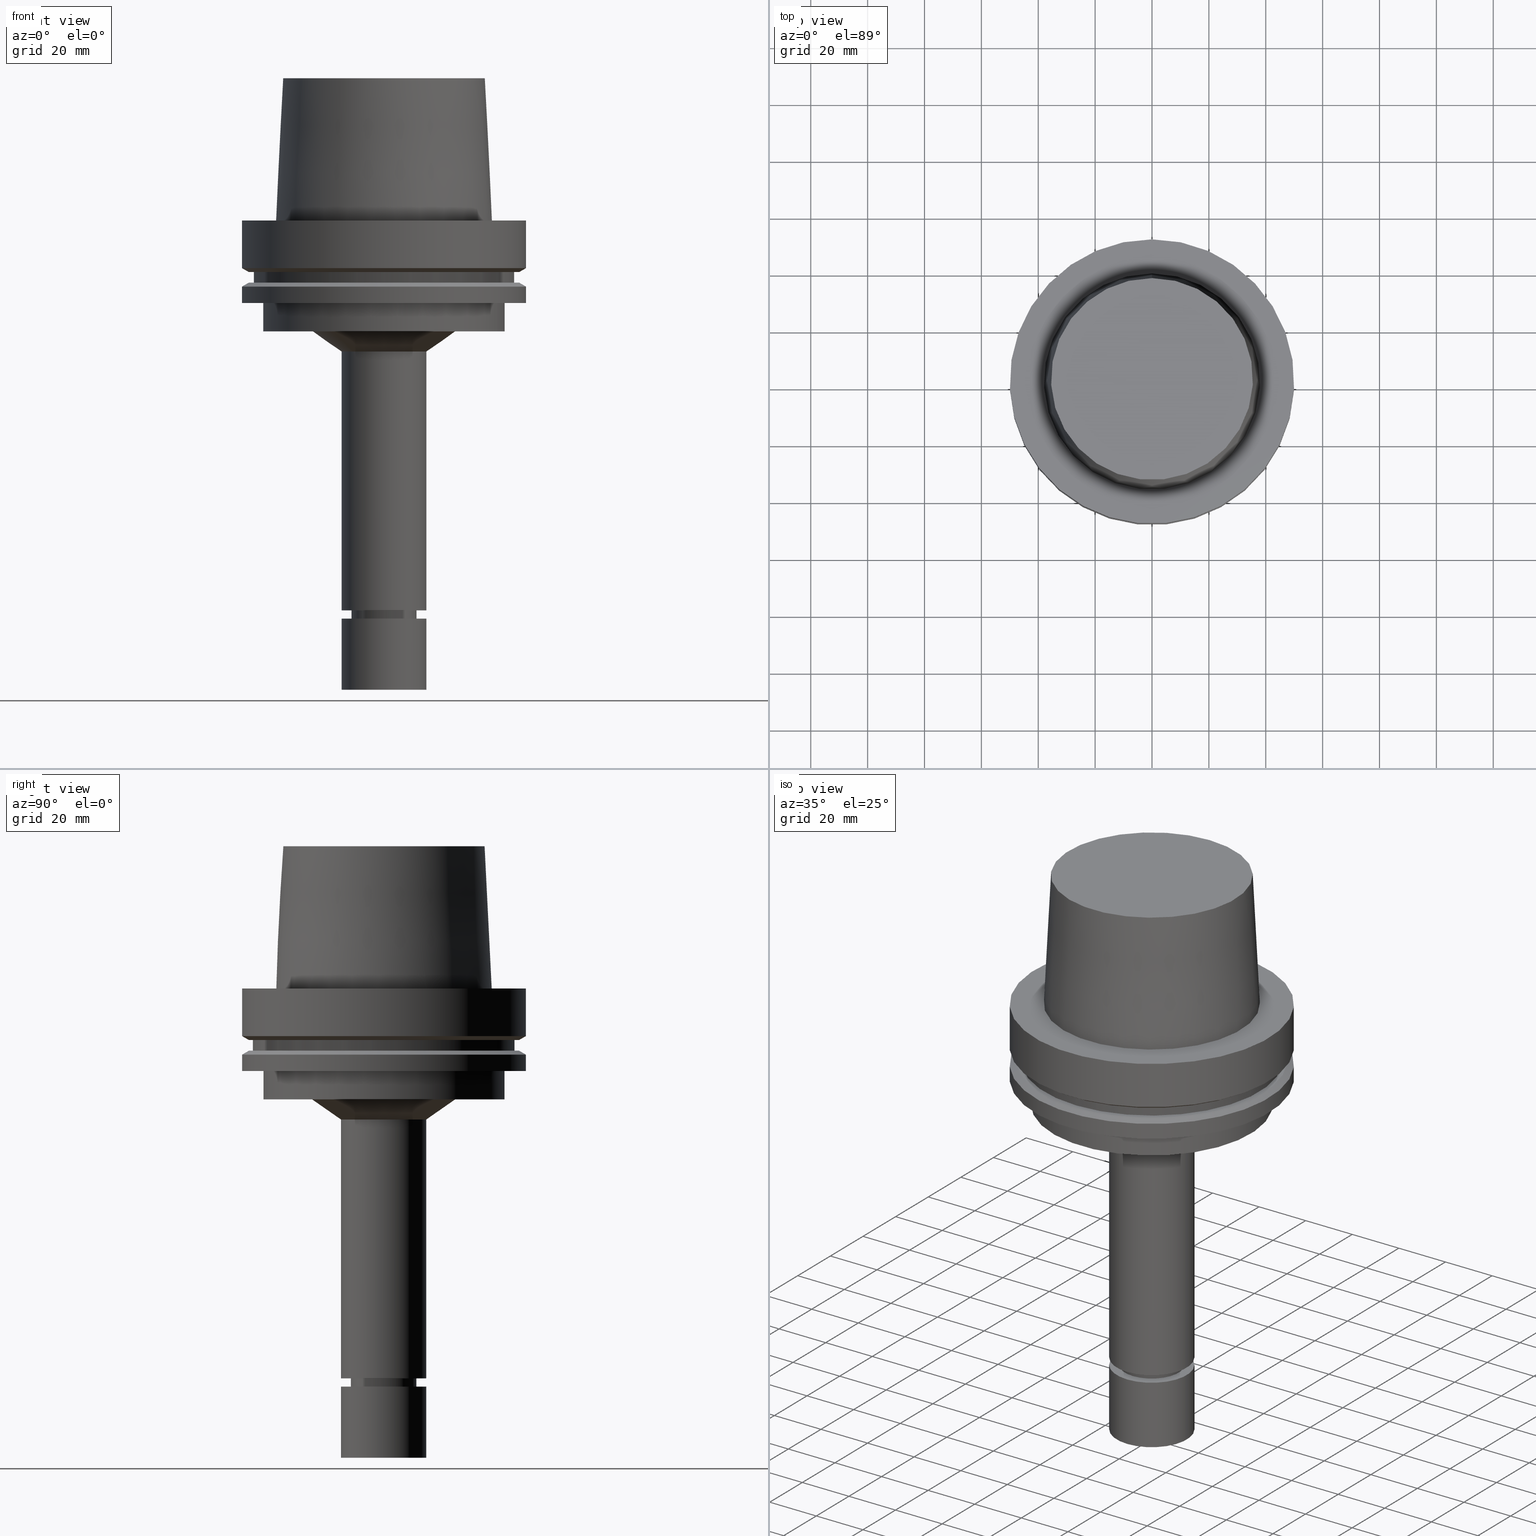
[diagram: canonical four-view strip — front | top / right | iso, engineering-drawing reading convention]
A machine part, canonical four-view strip (front | top / right | iso — engineering-drawing reading convention). The complete STEP part file that produces these views, byte-faithful:
ISO-10303-21;
HEADER;
FILE_DESCRIPTION((''),'1');
FILE_NAME('U:/Translate/02_3D_Field-HP\X2\FF71FF6FFF8CFF9F5916\X0\2013/02_Step_Field-HP\X2\FF71FF6FFF8CFF9F5916\X0\2013/HSK-A100-MEGAER16-165NL.stp','2016-06-22T01:16:30',(''),(''),'Spatial Interop R21 SP3','Kubotek KeyCreator 2011 V10.0.2 (22737)',' ');
FILE_SCHEMA(('automotive_design'));
ENDSEC;
DATA;
#1=MECHANICAL_DESIGN_GEOMETRIC_PRESENTATION_REPRESENTATION(' ',(#14,#15,#16,#17,#18,#19,#20,#21,#22,#23,#24,#25,#26,#27,#28,#29,#30,#31,#32,#33,#34,#35,#36,#37,#38,#39,#40,#41,#42,#43,#44,#45,#46,#47,#48,#49,#50,#51,#52,#53,#54,#55,#56,#57,#58,#59,#60,#61),#10);
#2=PRODUCT_DEFINITION_CONTEXT('',#62,'design');
#3=APPLICATION_PROTOCOL_DEFINITION('INTERNATIONAL STANDARD','automotive_design',1994,#62);
#4=PRODUCT_CATEGORY_RELATIONSHIP('NONE','NONE',#63,#64);
#5=SHAPE_DEFINITION_REPRESENTATION(#65,#66);
#6=PRODUCT_DEFINITION_CONTEXT('',#67,'design');
#7=APPLICATION_PROTOCOL_DEFINITION('INTERNATIONAL STANDARD','automotive_design',1994,#67);
#8=PRODUCT_CATEGORY_RELATIONSHIP('NONE','NONE',#68,#69);
#9=SHAPE_DEFINITION_REPRESENTATION(#70,#71);
#10= (GEOMETRIC_REPRESENTATION_CONTEXT(3)GLOBAL_UNCERTAINTY_ASSIGNED_CONTEXT((#74))GLOBAL_UNIT_ASSIGNED_CONTEXT((#76,#77,#78))REPRESENTATION_CONTEXT('NONE','WORKSPACE'));
#14=STYLED_ITEM('',(#80),#81);
#15=STYLED_ITEM('',(#82,#83),#84);
#16=STYLED_ITEM('',(#85,#86),#87);
#17=STYLED_ITEM('',(#88,#89),#90);
#18=STYLED_ITEM('',(#91),#92);
#19=STYLED_ITEM('',(#93),#94);
#20=STYLED_ITEM('',(#95,#96),#97);
#21=STYLED_ITEM('',(#98),#99);
#22=STYLED_ITEM('',(#100),#101);
#23=STYLED_ITEM('',(#102,#103),#104);
#24=STYLED_ITEM('',(#105),#106);
#25=STYLED_ITEM('',(#107),#108);
#26=STYLED_ITEM('',(#109,#110),#111);
#27=STYLED_ITEM('',(#112,#113),#114);
#28=STYLED_ITEM('',(#115,#116),#117);
#29=STYLED_ITEM('',(#118,#119),#120);
#30=STYLED_ITEM('',(#121,#122),#123);
#31=STYLED_ITEM('',(#124,#125),#126);
#32=STYLED_ITEM('',(#127),#128);
#33=STYLED_ITEM('',(#129,#130),#131);
#34=STYLED_ITEM('',(#132,#133),#134);
#35=STYLED_ITEM('',(#135),#136);
#36=STYLED_ITEM('',(#137),#138);
#37=STYLED_ITEM('',(#139),#140);
#38=STYLED_ITEM('',(#141,#142),#143);
#39=STYLED_ITEM('',(#144,#145),#146);
#40=STYLED_ITEM('',(#147,#148),#149);
#41=STYLED_ITEM('',(#150,#151),#152);
#42=STYLED_ITEM('',(#153,#154),#155);
#43=STYLED_ITEM('',(#156,#157),#158);
#44=STYLED_ITEM('',(#159),#160);
#45=STYLED_ITEM('',(#161),#162);
#46=STYLED_ITEM('',(#163,#164),#165);
#47=STYLED_ITEM('',(#166,#167),#168);
#48=STYLED_ITEM('',(#169),#170);
#49=STYLED_ITEM('',(#171),#172);
#50=STYLED_ITEM('',(#173),#174);
#51=STYLED_ITEM('',(#175,#176),#177);
#52=STYLED_ITEM('',(#178),#179);
#53=STYLED_ITEM('',(#180),#181);
#54=STYLED_ITEM('',(#182,#183),#184);
#55=STYLED_ITEM('',(#185),#186);
#56=STYLED_ITEM('',(#187,#188),#189);
#57=STYLED_ITEM('',(#190,#191),#192);
#58=STYLED_ITEM('',(#193),#194);
#59=STYLED_ITEM('',(#195),#196);
#60=STYLED_ITEM('',(#197),#198);
#61=STYLED_ITEM('',(#199,#200),#201);
#62=APPLICATION_CONTEXT(' ');
#63=PRODUCT_CATEGORY('part','NONE');
#64=PRODUCT_RELATED_PRODUCT_CATEGORY('detail',' ',(#202));
#65=PRODUCT_DEFINITION_SHAPE('NONE','NONE',#203);
#66=ADVANCED_BREP_SHAPE_REPRESENTATION('Unnamed[1]',(#126,#204),#10);
#67=APPLICATION_CONTEXT(' ');
#68=PRODUCT_CATEGORY('part','NONE');
#69=PRODUCT_RELATED_PRODUCT_CATEGORY('detail',' ',(#205));
#70=PRODUCT_DEFINITION_SHAPE('NONE','NONE',#206);
#71=ADVANCED_BREP_SHAPE_REPRESENTATION('Unnamed[1]',(#143,#207),#10);
#74=UNCERTAINTY_MEASURE_WITH_UNIT(LENGTH_MEASURE(1.0E-006),#76,'','');
#76= (CONVERSION_BASED_UNIT('MILLIMETRE',#210)LENGTH_UNIT()NAMED_UNIT(#213));
#77= (NAMED_UNIT(#215)PLANE_ANGLE_UNIT()SI_UNIT($,.RADIAN.));
#78= (NAMED_UNIT(#215)SOLID_ANGLE_UNIT()SI_UNIT($,.STERADIAN.));
#80=PRESENTATION_STYLE_ASSIGNMENT((#221));
#81=EDGE_CURVE('Unnamed[1]',#222,#222,#223,.T.);
#82=PRESENTATION_STYLE_ASSIGNMENT((#224));
#83=PRESENTATION_STYLE_ASSIGNMENT((#225));
#84=ADVANCED_FACE('Unnamed[1]',(#226),#227,.T.);
#85=PRESENTATION_STYLE_ASSIGNMENT((#228));
#86=PRESENTATION_STYLE_ASSIGNMENT((#229));
#87=ADVANCED_FACE('Unnamed[1]',(#230,#231),#232,.T.);
#88=PRESENTATION_STYLE_ASSIGNMENT((#233));
#89=PRESENTATION_STYLE_ASSIGNMENT((#234));
#90=ADVANCED_FACE('Unnamed[1]',(#235,#236),#237,.T.);
#91=PRESENTATION_STYLE_ASSIGNMENT((#238));
#92=EDGE_CURVE('Unnamed[1]',#239,#239,#240,.T.);
#93=PRESENTATION_STYLE_ASSIGNMENT((#241));
#94=EDGE_CURVE('Unnamed[1]',#242,#242,#243,.T.);
#95=PRESENTATION_STYLE_ASSIGNMENT((#244));
#96=PRESENTATION_STYLE_ASSIGNMENT((#245));
#97=ADVANCED_FACE('Unnamed[1]',(#246,#247),#248,.T.);
#98=PRESENTATION_STYLE_ASSIGNMENT((#249));
#99=EDGE_CURVE('Unnamed[1]',#250,#250,#251,.T.);
#100=PRESENTATION_STYLE_ASSIGNMENT((#252));
#101=EDGE_CURVE('Unnamed[1]',#253,#253,#254,.T.);
#102=PRESENTATION_STYLE_ASSIGNMENT((#255));
#103=PRESENTATION_STYLE_ASSIGNMENT((#256));
#104=ADVANCED_FACE('Unnamed[1]',(#257,#258),#259,.T.);
#105=PRESENTATION_STYLE_ASSIGNMENT((#260));
#106=EDGE_CURVE('Unnamed[1]',#261,#261,#262,.T.);
#107=PRESENTATION_STYLE_ASSIGNMENT((#263));
#108=EDGE_CURVE('Unnamed[1]',#264,#264,#265,.T.);
#109=PRESENTATION_STYLE_ASSIGNMENT((#266));
#110=PRESENTATION_STYLE_ASSIGNMENT((#267));
#111=ADVANCED_FACE('Unnamed[1]',(#268,#269),#270,.T.);
#112=PRESENTATION_STYLE_ASSIGNMENT((#271));
#113=PRESENTATION_STYLE_ASSIGNMENT((#272));
#114=ADVANCED_FACE('Unnamed[1]',(#273),#274,.T.);
#115=PRESENTATION_STYLE_ASSIGNMENT((#275));
#116=PRESENTATION_STYLE_ASSIGNMENT((#276));
#117=ADVANCED_FACE('Unnamed[1]',(#277,#278),#279,.T.);
#118=PRESENTATION_STYLE_ASSIGNMENT((#280));
#119=PRESENTATION_STYLE_ASSIGNMENT((#281));
#120=ADVANCED_FACE('Unnamed[1]',(#282,#283),#284,.T.);
#121=PRESENTATION_STYLE_ASSIGNMENT((#285));
#122=PRESENTATION_STYLE_ASSIGNMENT((#286));
#123=ADVANCED_FACE('Unnamed[1]',(#287,#288),#289,.T.);
#124=PRESENTATION_STYLE_ASSIGNMENT((#290));
#125=PRESENTATION_STYLE_ASSIGNMENT((#291));
#126=MANIFOLD_SOLID_BREP('Unnamed[1]',#292);
#127=PRESENTATION_STYLE_ASSIGNMENT((#293));
#128=EDGE_CURVE('Unnamed[1]',#294,#294,#295,.T.);
#129=PRESENTATION_STYLE_ASSIGNMENT((#296));
#130=PRESENTATION_STYLE_ASSIGNMENT((#297));
#131=ADVANCED_FACE('Unnamed[1]',(#298,#299),#300,.T.);
#132=PRESENTATION_STYLE_ASSIGNMENT((#301));
#133=PRESENTATION_STYLE_ASSIGNMENT((#302));
#134=ADVANCED_FACE('Unnamed[1]',(#303,#304),#305,.T.);
#135=PRESENTATION_STYLE_ASSIGNMENT((#306));
#136=EDGE_CURVE('Unnamed[1]',#307,#307,#308,.T.);
#137=PRESENTATION_STYLE_ASSIGNMENT((#309));
#138=EDGE_CURVE('Unnamed[1]',#310,#310,#311,.T.);
#139=PRESENTATION_STYLE_ASSIGNMENT((#312));
#140=EDGE_CURVE('Unnamed[1]',#313,#313,#314,.T.);
#141=PRESENTATION_STYLE_ASSIGNMENT((#315));
#142=PRESENTATION_STYLE_ASSIGNMENT((#316));
#143=MANIFOLD_SOLID_BREP('Unnamed[1]',#317);
#144=PRESENTATION_STYLE_ASSIGNMENT((#318));
#145=PRESENTATION_STYLE_ASSIGNMENT((#319));
#146=ADVANCED_FACE('Unnamed[1]',(#320,#321),#322,.T.);
#147=PRESENTATION_STYLE_ASSIGNMENT((#323));
#148=PRESENTATION_STYLE_ASSIGNMENT((#324));
#149=ADVANCED_FACE('Unnamed[1]',(#325,#326),#327,.T.);
#150=PRESENTATION_STYLE_ASSIGNMENT((#328));
#151=PRESENTATION_STYLE_ASSIGNMENT((#329));
#152=ADVANCED_FACE('Unnamed[1]',(#330,#331),#332,.T.);
#153=PRESENTATION_STYLE_ASSIGNMENT((#333));
#154=PRESENTATION_STYLE_ASSIGNMENT((#334));
#155=ADVANCED_FACE('Unnamed[1]',(#335),#336,.T.);
#156=PRESENTATION_STYLE_ASSIGNMENT((#337));
#157=PRESENTATION_STYLE_ASSIGNMENT((#338));
#158=ADVANCED_FACE('Unnamed[1]',(#339,#340),#341,.T.);
#159=PRESENTATION_STYLE_ASSIGNMENT((#342));
#160=EDGE_CURVE('Unnamed[1]',#343,#343,#344,.T.);
#161=PRESENTATION_STYLE_ASSIGNMENT((#345));
#162=EDGE_CURVE('Unnamed[1]',#346,#346,#347,.T.);
#163=PRESENTATION_STYLE_ASSIGNMENT((#348));
#164=PRESENTATION_STYLE_ASSIGNMENT((#349));
#165=ADVANCED_FACE('Unnamed[1]',(#350,#351),#352,.T.);
#166=PRESENTATION_STYLE_ASSIGNMENT((#353));
#167=PRESENTATION_STYLE_ASSIGNMENT((#354));
#168=ADVANCED_FACE('Unnamed[1]',(#355,#356),#357,.T.);
#169=PRESENTATION_STYLE_ASSIGNMENT((#358));
#170=EDGE_CURVE('Unnamed[1]',#359,#359,#360,.T.);
#171=PRESENTATION_STYLE_ASSIGNMENT((#361));
#172=EDGE_CURVE('Unnamed[1]',#362,#362,#363,.T.);
#173=PRESENTATION_STYLE_ASSIGNMENT((#364));
#174=EDGE_CURVE('Unnamed[1]',#365,#365,#366,.T.);
#175=PRESENTATION_STYLE_ASSIGNMENT((#367));
#176=PRESENTATION_STYLE_ASSIGNMENT((#368));
#177=ADVANCED_FACE('Unnamed[1]',(#369),#370,.T.);
#178=PRESENTATION_STYLE_ASSIGNMENT((#371));
#179=EDGE_CURVE('Unnamed[1]',#372,#372,#373,.T.);
#180=PRESENTATION_STYLE_ASSIGNMENT((#374));
#181=EDGE_CURVE('Unnamed[1]',#375,#375,#376,.T.);
#182=PRESENTATION_STYLE_ASSIGNMENT((#377));
#183=PRESENTATION_STYLE_ASSIGNMENT((#378));
#184=ADVANCED_FACE('Unnamed[1]',(#379,#380),#381,.T.);
#185=PRESENTATION_STYLE_ASSIGNMENT((#382));
#186=EDGE_CURVE('Unnamed[1]',#383,#383,#384,.T.);
#187=PRESENTATION_STYLE_ASSIGNMENT((#385));
#188=PRESENTATION_STYLE_ASSIGNMENT((#386));
#189=ADVANCED_FACE('Unnamed[1]',(#387,#388),#389,.T.);
#190=PRESENTATION_STYLE_ASSIGNMENT((#390));
#191=PRESENTATION_STYLE_ASSIGNMENT((#391));
#192=ADVANCED_FACE('Unnamed[1]',(#392,#393),#394,.T.);
#193=PRESENTATION_STYLE_ASSIGNMENT((#395));
#194=EDGE_CURVE('Unnamed[1]',#396,#396,#397,.T.);
#195=PRESENTATION_STYLE_ASSIGNMENT((#398));
#196=EDGE_CURVE('Unnamed[1]',#399,#399,#400,.T.);
#197=PRESENTATION_STYLE_ASSIGNMENT((#401));
#198=EDGE_CURVE('Unnamed[1]',#402,#402,#403,.T.);
#199=PRESENTATION_STYLE_ASSIGNMENT((#404));
#200=PRESENTATION_STYLE_ASSIGNMENT((#405));
#201=ADVANCED_FACE('Unnamed[1]',(#406,#407),#408,.T.);
#202=PRODUCT('Unnamed[1]','Unnamed[1]','PART-Unnamed[1]-DESC',(#409));
#203=PRODUCT_DEFINITION('NONE','NONE',#410,#2);
#204=AXIS2_PLACEMENT_3D('',#411,#412,#413);
#205=PRODUCT('Unnamed[1]','Unnamed[1]','PART-Unnamed[1]-DESC',(#414));
#206=PRODUCT_DEFINITION('NONE','NONE',#415,#6);
#207=AXIS2_PLACEMENT_3D('',#416,#417,#418);
#210=LENGTH_MEASURE_WITH_UNIT(LENGTH_MEASURE(1.0),#419);
#213=DIMENSIONAL_EXPONENTS(1.0,0.0,0.0,0.0,0.0,0.0,0.0);
#215=DIMENSIONAL_EXPONENTS(0.0,0.0,0.0,0.0,0.0,0.0,0.0);
#221=CURVE_STYLE('',#420,POSITIVE_LENGTH_MEASURE(1000.0),#421);
#222=VERTEX_POINT('',#422);
#223=CIRCLE('',#423,47.62259526);
#224=SURFACE_STYLE_USAGE(.BOTH.,#424);
#225=CURVE_STYLE('',#425,POSITIVE_LENGTH_MEASURE(1000.0),#426);
#226=FACE_OUTER_BOUND('',#427,.T.);
#227=PLANE('',#428);
#228=SURFACE_STYLE_USAGE(.BOTH.,#429);
#229=CURVE_STYLE('',#430,POSITIVE_LENGTH_MEASURE(1000.0),#431);
#230=FACE_OUTER_BOUND('',#432,.T.);
#231=FACE_BOUND('',#433,.T.);
#232=PLANE('',#434);
#233=SURFACE_STYLE_USAGE(.BOTH.,#435);
#234=CURVE_STYLE('',#436,POSITIVE_LENGTH_MEASURE(1000.0),#437);
#235=FACE_BOUND('',#438,.T.);
#236=FACE_BOUND('',#439,.T.);
#237=CONICAL_SURFACE('',#440,48.81129763,1.04719755328238);
#238=CURVE_STYLE('',#441,POSITIVE_LENGTH_MEASURE(1000.0),#442);
#239=VERTEX_POINT('',#443);
#240=CIRCLE('',#444,50.0);
#241=CURVE_STYLE('',#445,POSITIVE_LENGTH_MEASURE(1000.0),#446);
#242=VERTEX_POINT('',#447);
#243=CIRCLE('',#448,50.0);
#244=SURFACE_STYLE_USAGE(.BOTH.,#449);
#245=CURVE_STYLE('',#450,POSITIVE_LENGTH_MEASURE(1000.0),#451);
#246=FACE_BOUND('',#452,.T.);
#247=FACE_BOUND('',#453,.T.);
#248=CYLINDRICAL_SURFACE('',#454,11.4999999999964);
#249=CURVE_STYLE('',#455,POSITIVE_LENGTH_MEASURE(1000.0),#456);
#250=VERTEX_POINT('',#457);
#251=CIRCLE('',#458,15.0);
#252=CURVE_STYLE('',#459,POSITIVE_LENGTH_MEASURE(1000.0),#460);
#253=VERTEX_POINT('',#461);
#254=CIRCLE('',#462,37.9999999999349);
#255=SURFACE_STYLE_USAGE(.BOTH.,#463);
#256=CURVE_STYLE('',#464,POSITIVE_LENGTH_MEASURE(1000.0),#465);
#257=FACE_BOUND('',#466,.T.);
#258=FACE_BOUND('',#467,.T.);
#259=CONICAL_SURFACE('',#468,20.0717863357269,0.962446965068553);
#260=CURVE_STYLE('',#469,POSITIVE_LENGTH_MEASURE(1000.0),#470);
#261=VERTEX_POINT('',#471);
#262=CIRCLE('',#472,35.5000000015618);
#263=CURVE_STYLE('',#473,POSITIVE_LENGTH_MEASURE(1000.0),#474);
#264=VERTEX_POINT('',#475);
#265=CIRCLE('',#476,9.89999999999962);
#266=SURFACE_STYLE_USAGE(.BOTH.,#477);
#267=CURVE_STYLE('',#478,POSITIVE_LENGTH_MEASURE(1000.0),#479);
#268=FACE_BOUND('',#480,.T.);
#269=FACE_BOUND('',#481,.T.);
#270=CYLINDRICAL_SURFACE('',#482,15.0);
#271=SURFACE_STYLE_USAGE(.BOTH.,#483);
#272=CURVE_STYLE('',#484,POSITIVE_LENGTH_MEASURE(1000.0),#485);
#273=FACE_OUTER_BOUND('',#486,.T.);
#274=PLANE('',#487);
#275=SURFACE_STYLE_USAGE(.BOTH.,#488);
#276=CURVE_STYLE('',#489,POSITIVE_LENGTH_MEASURE(1000.0),#490);
#277=FACE_BOUND('',#491,.T.);
#278=FACE_OUTER_BOUND('',#492,.T.);
#279=PLANE('',#493);
#280=SURFACE_STYLE_USAGE(.BOTH.,#494);
#281=CURVE_STYLE('',#495,POSITIVE_LENGTH_MEASURE(1000.0),#496);
#282=FACE_BOUND('',#497,.T.);
#283=FACE_BOUND('',#498,.T.);
#284=CYLINDRICAL_SURFACE('',#499,11.0000000000001);
#285=SURFACE_STYLE_USAGE(.BOTH.,#500);
#286=CURVE_STYLE('',#501,POSITIVE_LENGTH_MEASURE(1000.0),#502);
#287=FACE_BOUND('',#503,.T.);
#288=FACE_OUTER_BOUND('',#504,.T.);
#289=PLANE('',#505);
#290=SURFACE_STYLE_USAGE(.BOTH.,#506);
#291=CURVE_STYLE('',#507,POSITIVE_LENGTH_MEASURE(1000.0),#508);
#292=CLOSED_SHELL('',(#114,#146,#189,#165,#192,#158,#131,#87,#90,#134,#184,#149,#117,#104,#152,#123,#97,#168,#120,#201,#84));
#293=CURVE_STYLE('',#509,POSITIVE_LENGTH_MEASURE(1000.0),#510);
#294=VERTEX_POINT('',#511);
#295=CIRCLE('',#512,15.0);
#296=SURFACE_STYLE_USAGE(.BOTH.,#513);
#297=CURVE_STYLE('',#514,POSITIVE_LENGTH_MEASURE(1000.0),#515);
#298=FACE_BOUND('',#516,.T.);
#299=FACE_BOUND('',#517,.T.);
#300=CYLINDRICAL_SURFACE('',#518,46.0);
#301=SURFACE_STYLE_USAGE(.BOTH.,#519);
#302=CURVE_STYLE('',#520,POSITIVE_LENGTH_MEASURE(1000.0),#521);
#303=FACE_BOUND('',#522,.T.);
#304=FACE_BOUND('',#523,.T.);
#305=CYLINDRICAL_SURFACE('',#524,50.0);
#306=CURVE_STYLE('',#525,POSITIVE_LENGTH_MEASURE(1000.0),#526);
#307=VERTEX_POINT('',#527);
#308=CIRCLE('',#528,25.1435726714537);
#309=CURVE_STYLE('',#529,POSITIVE_LENGTH_MEASURE(1000.0),#530);
#310=VERTEX_POINT('',#531);
#311=CIRCLE('',#532,47.62259526);
#312=CURVE_STYLE('',#533,POSITIVE_LENGTH_MEASURE(1000.0),#534);
#313=VERTEX_POINT('',#535);
#314=CIRCLE('',#536,10.9999999999999);
#315=SURFACE_STYLE_USAGE(.BOTH.,#537);
#316=CURVE_STYLE('',#538,POSITIVE_LENGTH_MEASURE(1000.0),#539);
#317=CLOSED_SHELL('',(#177,#155,#111));
#318=SURFACE_STYLE_USAGE(.BOTH.,#540);
#319=CURVE_STYLE('',#541,POSITIVE_LENGTH_MEASURE(1000.0),#542);
#320=FACE_BOUND('',#543,.T.);
#321=FACE_BOUND('',#544,.T.);
#322=CONICAL_SURFACE('',#545,36.7500000007484,0.0499583956894843);
#323=SURFACE_STYLE_USAGE(.BOTH.,#546);
#324=CURVE_STYLE('',#547,POSITIVE_LENGTH_MEASURE(1000.0),#548);
#325=FACE_BOUND('',#549,.T.);
#326=FACE_BOUND('',#550,.T.);
#327=CYLINDRICAL_SURFACE('',#551,42.5);
#328=SURFACE_STYLE_USAGE(.BOTH.,#552);
#329=CURVE_STYLE('',#553,POSITIVE_LENGTH_MEASURE(1000.0),#554);
#330=FACE_BOUND('',#555,.T.);
#331=FACE_BOUND('',#556,.T.);
#332=CYLINDRICAL_SURFACE('',#557,15.0);
#333=SURFACE_STYLE_USAGE(.BOTH.,#558);
#334=CURVE_STYLE('',#559,POSITIVE_LENGTH_MEASURE(1000.0),#560);
#335=FACE_OUTER_BOUND('',#561,.T.);
#336=PLANE('',#562);
#337=SURFACE_STYLE_USAGE(.BOTH.,#563);
#338=CURVE_STYLE('',#564,POSITIVE_LENGTH_MEASURE(1000.0),#565);
#339=FACE_BOUND('',#566,.T.);
#340=FACE_OUTER_BOUND('',#567,.T.);
#341=PLANE('',#568);
#342=CURVE_STYLE('',#569,POSITIVE_LENGTH_MEASURE(1000.0),#570);
#343=VERTEX_POINT('',#571);
#344=CIRCLE('',#572,11.0000000000003);
#345=CURVE_STYLE('',#573,POSITIVE_LENGTH_MEASURE(1000.0),#574);
#346=VERTEX_POINT('',#575);
#347=CIRCLE('',#576,46.0);
#348=SURFACE_STYLE_USAGE(.BOTH.,#577);
#349=CURVE_STYLE('',#578,POSITIVE_LENGTH_MEASURE(1000.0),#579);
#350=FACE_BOUND('',#580,.T.);
#351=FACE_BOUND('',#581,.T.);
#352=CYLINDRICAL_SURFACE('',#582,50.0);
#353=SURFACE_STYLE_USAGE(.BOTH.,#583);
#354=CURVE_STYLE('',#584,POSITIVE_LENGTH_MEASURE(1000.0),#585);
#355=FACE_BOUND('',#586,.T.);
#356=FACE_BOUND('',#587,.T.);
#357=CONICAL_SURFACE('',#588,11.250000000001,0.766162649701789);
#358=CURVE_STYLE('',#589,POSITIVE_LENGTH_MEASURE(1000.0),#590);
#359=VERTEX_POINT('',#591);
#360=CIRCLE('',#592,11.4999999999907);
#361=CURVE_STYLE('',#593,POSITIVE_LENGTH_MEASURE(1000.0),#594);
#362=VERTEX_POINT('',#595);
#363=CIRCLE('',#596,50.0);
#364=CURVE_STYLE('',#597,POSITIVE_LENGTH_MEASURE(1000.0),#598);
#365=VERTEX_POINT('',#599);
#366=CIRCLE('',#600,11.5000000000021);
#367=SURFACE_STYLE_USAGE(.BOTH.,#601);
#368=CURVE_STYLE('',#602,POSITIVE_LENGTH_MEASURE(1000.0),#603);
#369=FACE_OUTER_BOUND('',#604,.T.);
#370=PLANE('',#605);
#371=CURVE_STYLE('',#606,POSITIVE_LENGTH_MEASURE(1000.0),#607);
#372=VERTEX_POINT('',#608);
#373=CIRCLE('',#609,46.0);
#374=CURVE_STYLE('',#610,POSITIVE_LENGTH_MEASURE(1000.0),#611);
#375=VERTEX_POINT('',#612);
#376=CIRCLE('',#613,42.5);
#377=SURFACE_STYLE_USAGE(.BOTH.,#614);
#378=CURVE_STYLE('',#615,POSITIVE_LENGTH_MEASURE(1000.0),#616);
#379=FACE_BOUND('',#617,.T.);
#380=FACE_OUTER_BOUND('',#618,.T.);
#381=PLANE('',#619);
#382=CURVE_STYLE('',#620,POSITIVE_LENGTH_MEASURE(1000.0),#621);
#383=VERTEX_POINT('',#622);
#384=CIRCLE('',#623,15.0000000000001);
#385=SURFACE_STYLE_USAGE(.BOTH.,#624);
#386=CURVE_STYLE('',#625,POSITIVE_LENGTH_MEASURE(1000.0),#626);
#387=FACE_OUTER_BOUND('',#627,.T.);
#388=FACE_BOUND('',#628,.T.);
#389=PLANE('',#629);
#390=SURFACE_STYLE_USAGE(.BOTH.,#630);
#391=CURVE_STYLE('',#631,POSITIVE_LENGTH_MEASURE(1000.0),#632);
#392=FACE_BOUND('',#633,.T.);
#393=FACE_BOUND('',#634,.T.);
#394=CONICAL_SURFACE('',#635,48.81129763,1.04719755328238);
#395=CURVE_STYLE('',#636,POSITIVE_LENGTH_MEASURE(1000.0),#637);
#396=VERTEX_POINT('',#638);
#397=CIRCLE('',#639,50.0);
#398=CURVE_STYLE('',#640,POSITIVE_LENGTH_MEASURE(1000.0),#641);
#399=VERTEX_POINT('',#642);
#400=CIRCLE('',#643,15.0);
#401=CURVE_STYLE('',#644,POSITIVE_LENGTH_MEASURE(1000.0),#645);
#402=VERTEX_POINT('',#646);
#403=CIRCLE('',#647,42.5);
#404=SURFACE_STYLE_USAGE(.BOTH.,#648);
#405=CURVE_STYLE('',#649,POSITIVE_LENGTH_MEASURE(1000.0),#650);
#406=FACE_BOUND('',#651,.T.);
#407=FACE_BOUND('',#652,.T.);
#408=CONICAL_SURFACE('',#653,10.4499999999999,0.523598775598218);
#409=PRODUCT_CONTEXT('',#62,'mechanical');
#410=PRODUCT_DEFINITION_FORMATION_WITH_SPECIFIED_SOURCE(' ','NONE',#202,.NOT_KNOWN.);
#411=CARTESIAN_POINT('',(0.0,0.0,0.0));
#412=DIRECTION('',(0.0,0.0,1.0));
#413=DIRECTION('',(1.0,0.0,0.0));
#414=PRODUCT_CONTEXT('',#67,'mechanical');
#415=PRODUCT_DEFINITION_FORMATION_WITH_SPECIFIED_SOURCE(' ','NONE',#205,.NOT_KNOWN.);
#416=CARTESIAN_POINT('',(0.0,0.0,0.0));
#417=DIRECTION('',(0.0,0.0,1.0));
#418=DIRECTION('',(1.0,0.0,0.0));
#419= (NAMED_UNIT(#213)LENGTH_UNIT()SI_UNIT(.MILLI.,.METRE.));
#420=DRAUGHTING_PRE_DEFINED_CURVE_FONT('continuous');
#421=COLOUR_RGB('',0.0,1.0,0.0);
#422=CARTESIAN_POINT('',(1.33945743656742E-015,47.62259526,-21.875));
#423=AXIS2_PLACEMENT_3D('',#655,#656,#657);
#424=SURFACE_SIDE_STYLE('',(#658));
#425=DRAUGHTING_PRE_DEFINED_CURVE_FONT('continuous');
#426=COLOUR_RGB('',0.0,1.0,0.0);
#427=EDGE_LOOP('',(#659));
#428=AXIS2_PLACEMENT_3D('',#660,#661,#662);
#429=SURFACE_SIDE_STYLE('',(#663));
#430=DRAUGHTING_PRE_DEFINED_CURVE_FONT('continuous');
#431=COLOUR_RGB('',0.0,1.0,0.0);
#432=EDGE_LOOP('',(#664));
#433=EDGE_LOOP('',(#665));
#434=AXIS2_PLACEMENT_3D('',#666,#667,#668);
#435=SURFACE_SIDE_STYLE('',(#669));
#436=DRAUGHTING_PRE_DEFINED_CURVE_FONT('continuous');
#437=COLOUR_RGB('',0.0,1.0,0.0);
#438=EDGE_LOOP('',(#670));
#439=EDGE_LOOP('',(#671));
#440=AXIS2_PLACEMENT_3D('',#672,#673,#674);
#441=DRAUGHTING_PRE_DEFINED_CURVE_FONT('continuous');
#442=COLOUR_RGB('',0.0,1.0,0.0);
#443=CARTESIAN_POINT('',(-1.81547968506605E-031,50.0,-9.76766004263236E-016));
#444=AXIS2_PLACEMENT_3D('',#675,#676,#677);
#445=DRAUGHTING_PRE_DEFINED_CURVE_FONT('continuous');
#446=COLOUR_RGB('',0.0,1.0,0.0);
#447=CARTESIAN_POINT('',(1.0257889421431E-015,50.0,-16.75240474));
#448=AXIS2_PLACEMENT_3D('',#678,#679,#680);
#449=SURFACE_SIDE_STYLE('',(#681));
#450=DRAUGHTING_PRE_DEFINED_CURVE_FONT('continuous');
#451=COLOUR_RGB('',0.0,1.0,0.0);
#452=EDGE_LOOP('',(#682));
#453=EDGE_LOOP('',(#683));
#454=AXIS2_PLACEMENT_3D('',#684,#685,#686);
#455=DRAUGHTING_PRE_DEFINED_CURVE_FONT('continuous');
#456=COLOUR_RGB('',0.0,1.0,0.0);
#457=CARTESIAN_POINT('',(2.82064573751942E-015,15.0,-46.06464067));
#458=AXIS2_PLACEMENT_3D('',#687,#688,#689);
#459=DRAUGHTING_PRE_DEFINED_CURVE_FONT('continuous');
#460=COLOUR_RGB('',0.0,1.0,0.0);
#461=CARTESIAN_POINT('',(-3.3636548776863E-032,37.9999999999349,-2.44634216324803E-015));
#462=AXIS2_PLACEMENT_3D('',#690,#691,#692);
#463=SURFACE_SIDE_STYLE('',(#693));
#464=DRAUGHTING_PRE_DEFINED_CURVE_FONT('continuous');
#465=COLOUR_RGB('',0.0,1.0,0.0);
#466=EDGE_LOOP('',(#694));
#467=EDGE_LOOP('',(#695));
#468=AXIS2_PLACEMENT_3D('',#696,#697,#698);
#469=DRAUGHTING_PRE_DEFINED_CURVE_FONT('continuous');
#470=COLOUR_RGB('',0.0,1.0,0.0);
#471=CARTESIAN_POINT('',(-3.06161699786838E-015,35.5000000015618,50.0));
#472=AXIS2_PLACEMENT_3D('',#699,#700,#701);
#473=DRAUGHTING_PRE_DEFINED_CURVE_FONT('continuous');
#474=COLOUR_RGB('',0.0,1.0,0.0);
#475=CARTESIAN_POINT('',(9.56449150134077E-015,9.89999999999964,-156.199999999999));
#476=AXIS2_PLACEMENT_3D('',#702,#703,#704);
#477=SURFACE_SIDE_STYLE('',(#705));
#478=DRAUGHTING_PRE_DEFINED_CURVE_FONT('continuous');
#479=COLOUR_RGB('',0.0,1.0,0.0);
#480=EDGE_LOOP('',(#706));
#481=EDGE_LOOP('',(#707));
#482=AXIS2_PLACEMENT_3D('',#708,#709,#710);
#483=SURFACE_SIDE_STYLE('',(#711));
#484=DRAUGHTING_PRE_DEFINED_CURVE_FONT('continuous');
#485=COLOUR_RGB('',0.0,1.0,0.0);
#486=EDGE_LOOP('',(#712));
#487=AXIS2_PLACEMENT_3D('',#713,#714,#715);
#488=SURFACE_SIDE_STYLE('',(#716));
#489=DRAUGHTING_PRE_DEFINED_CURVE_FONT('continuous');
#490=COLOUR_RGB('',0.0,1.0,0.0);
#491=EDGE_LOOP('',(#717));
#492=EDGE_LOOP('',(#718));
#493=AXIS2_PLACEMENT_3D('',#719,#720,#721);
#494=SURFACE_SIDE_STYLE('',(#722));
#495=DRAUGHTING_PRE_DEFINED_CURVE_FONT('continuous');
#496=COLOUR_RGB('',0.0,1.0,0.0);
#497=EDGE_LOOP('',(#723));
#498=EDGE_LOOP('',(#724));
#499=AXIS2_PLACEMENT_3D('',#725,#726,#727);
#500=SURFACE_SIDE_STYLE('',(#728));
#501=DRAUGHTING_PRE_DEFINED_CURVE_FONT('continuous');
#502=COLOUR_RGB('',0.0,1.0,0.0);
#503=EDGE_LOOP('',(#729));
#504=EDGE_LOOP('',(#730));
#505=AXIS2_PLACEMENT_3D('',#731,#732,#733);
#506=SURFACE_SIDE_STYLE('',(#734));
#507=DRAUGHTING_PRE_DEFINED_CURVE_FONT('continuous');
#508=COLOUR_RGB('',0.0,1.0,0.0);
#509=DRAUGHTING_PRE_DEFINED_CURVE_FONT('continuous');
#510=COLOUR_RGB('',0.0,1.0,0.0);
#511=CARTESIAN_POINT('',(8.39495380815506E-015,15.0,-137.099999999999));
#512=AXIS2_PLACEMENT_3D('',#735,#736,#737);
#513=SURFACE_SIDE_STYLE('',(#738));
#514=DRAUGHTING_PRE_DEFINED_CURVE_FONT('continuous');
#515=COLOUR_RGB('',0.0,1.0,0.0);
#516=EDGE_LOOP('',(#739));
#517=EDGE_LOOP('',(#740));
#518=AXIS2_PLACEMENT_3D('',#741,#742,#743);
#519=SURFACE_SIDE_STYLE('',(#744));
#520=DRAUGHTING_PRE_DEFINED_CURVE_FONT('continuous');
#521=COLOUR_RGB('',0.0,1.0,0.0);
#522=EDGE_LOOP('',(#745));
#523=EDGE_LOOP('',(#746));
#524=AXIS2_PLACEMENT_3D('',#747,#748,#749);
#525=DRAUGHTING_PRE_DEFINED_CURVE_FONT('continuous');
#526=COLOUR_RGB('',0.0,1.0,0.0);
#527=CARTESIAN_POINT('',(2.38806125833734E-015,25.1435726714537,-39.0));
#528=AXIS2_PLACEMENT_3D('',#750,#751,#752);
#529=DRAUGHTING_PRE_DEFINED_CURVE_FONT('continuous');
#530=COLOUR_RGB('',0.0,1.0,0.0);
#531=CARTESIAN_POINT('',(1.10983616172729E-015,47.62259526,-18.125));
#532=AXIS2_PLACEMENT_3D('',#753,#754,#755);
#533=DRAUGHTING_PRE_DEFINED_CURVE_FONT('continuous');
#534=COLOUR_RGB('',0.0,1.0,0.0);
#535=CARTESIAN_POINT('',(8.78261208507782E-015,10.9999999999999,-143.430940107672));
#536=AXIS2_PLACEMENT_3D('',#756,#757,#758);
#537=SURFACE_SIDE_STYLE('',(#759));
#538=DRAUGHTING_PRE_DEFINED_CURVE_FONT('continuous');
#539=COLOUR_RGB('',0.0,1.0,0.0);
#540=SURFACE_SIDE_STYLE('',(#760));
#541=DRAUGHTING_PRE_DEFINED_CURVE_FONT('continuous');
#542=COLOUR_RGB('',0.0,1.0,0.0);
#543=EDGE_LOOP('',(#761));
#544=EDGE_LOOP('',(#762));
#545=AXIS2_PLACEMENT_3D('',#763,#764,#765);
#546=SURFACE_SIDE_STYLE('',(#766));
#547=DRAUGHTING_PRE_DEFINED_CURVE_FONT('continuous');
#548=COLOUR_RGB('',0.0,1.0,0.0);
#549=EDGE_LOOP('',(#767));
#550=EDGE_LOOP('',(#768));
#551=AXIS2_PLACEMENT_3D('',#769,#770,#771);
#552=SURFACE_SIDE_STYLE('',(#772));
#553=DRAUGHTING_PRE_DEFINED_CURVE_FONT('continuous');
#554=COLOUR_RGB('',0.0,1.0,0.0);
#555=EDGE_LOOP('',(#773));
#556=EDGE_LOOP('',(#774));
#557=AXIS2_PLACEMENT_3D('',#775,#776,#777);
#558=SURFACE_SIDE_STYLE('',(#778));
#559=DRAUGHTING_PRE_DEFINED_CURVE_FONT('continuous');
#560=COLOUR_RGB('',0.0,1.0,0.0);
#561=EDGE_LOOP('',(#779));
#562=AXIS2_PLACEMENT_3D('',#780,#781,#782);
#563=SURFACE_SIDE_STYLE('',(#783));
#564=DRAUGHTING_PRE_DEFINED_CURVE_FONT('continuous');
#565=COLOUR_RGB('',0.0,1.0,0.0);
#566=EDGE_LOOP('',(#784));
#567=EDGE_LOOP('',(#785));
#568=AXIS2_PLACEMENT_3D('',#786,#787,#788);
#569=DRAUGHTING_PRE_DEFINED_CURVE_FONT('continuous');
#570=COLOUR_RGB('',0.0,1.0,0.0);
#571=CARTESIAN_POINT('',(9.44782822508095E-015,11.0000000000003,-154.294744111672));
#572=AXIS2_PLACEMENT_3D('',#789,#790,#791);
#573=DRAUGHTING_PRE_DEFINED_CURVE_FONT('continuous');
#574=COLOUR_RGB('',0.0,1.0,0.0);
#575=CARTESIAN_POINT('',(1.10983616172729E-015,46.0,-18.125));
#576=AXIS2_PLACEMENT_3D('',#792,#793,#794);
#577=SURFACE_SIDE_STYLE('',(#795));
#578=DRAUGHTING_PRE_DEFINED_CURVE_FONT('continuous');
#579=COLOUR_RGB('',0.0,1.0,0.0);
#580=EDGE_LOOP('',(#796));
#581=EDGE_LOOP('',(#797));
#582=AXIS2_PLACEMENT_3D('',#798,#799,#800);
#583=SURFACE_SIDE_STYLE('',(#801));
#584=DRAUGHTING_PRE_DEFINED_CURVE_FONT('continuous');
#585=COLOUR_RGB('',0.0,1.0,0.0);
#586=EDGE_LOOP('',(#802));
#587=EDGE_LOOP('',(#803));
#588=AXIS2_PLACEMENT_3D('',#804,#805,#806);
#589=DRAUGHTING_PRE_DEFINED_CURVE_FONT('continuous');
#590=COLOUR_RGB('',0.0,1.0,0.0);
#591=CARTESIAN_POINT('',(8.39495380815511E-015,11.4999999999907,-137.1));
#592=AXIS2_PLACEMENT_3D('',#807,#808,#809);
#593=DRAUGHTING_PRE_DEFINED_CURVE_FONT('continuous');
#594=COLOUR_RGB('',0.0,1.0,0.0);
#595=CARTESIAN_POINT('',(1.77573785876366E-015,50.0,-29.0));
#596=AXIS2_PLACEMENT_3D('',#810,#811,#812);
#597=DRAUGHTING_PRE_DEFINED_CURVE_FONT('continuous');
#598=COLOUR_RGB('',0.0,1.0,0.0);
#599=CARTESIAN_POINT('',(8.75079482791645E-015,11.5000000000021,-142.911324865408));
#600=AXIS2_PLACEMENT_3D('',#813,#814,#815);
#601=SURFACE_SIDE_STYLE('',(#816));
#602=DRAUGHTING_PRE_DEFINED_CURVE_FONT('continuous');
#603=COLOUR_RGB('',0.0,1.0,0.0);
#604=EDGE_LOOP('',(#817));
#605=AXIS2_PLACEMENT_3D('',#818,#819,#820);
#606=DRAUGHTING_PRE_DEFINED_CURVE_FONT('continuous');
#607=COLOUR_RGB('',0.0,1.0,0.0);
#608=CARTESIAN_POINT('',(1.33945743656742E-015,46.0,-21.875));
#609=AXIS2_PLACEMENT_3D('',#821,#822,#823);
#610=DRAUGHTING_PRE_DEFINED_CURVE_FONT('continuous');
#611=COLOUR_RGB('',0.0,1.0,0.0);
#612=CARTESIAN_POINT('',(1.77573785876366E-015,42.5,-29.0));
#613=AXIS2_PLACEMENT_3D('',#824,#825,#826);
#614=SURFACE_SIDE_STYLE('',(#827));
#615=DRAUGHTING_PRE_DEFINED_CURVE_FONT('continuous');
#616=COLOUR_RGB('',0.0,1.0,0.0);
#617=EDGE_LOOP('',(#828));
#618=EDGE_LOOP('',(#829));
#619=AXIS2_PLACEMENT_3D('',#830,#831,#832);
#620=DRAUGHTING_PRE_DEFINED_CURVE_FONT('continuous');
#621=COLOUR_RGB('',0.0,1.0,0.0);
#622=CARTESIAN_POINT('',(8.57252759403147E-015,15.0000000000001,-140.0));
#623=AXIS2_PLACEMENT_3D('',#833,#834,#835);
#624=SURFACE_SIDE_STYLE('',(#836));
#625=DRAUGHTING_PRE_DEFINED_CURVE_FONT('continuous');
#626=COLOUR_RGB('',0.0,1.0,0.0);
#627=EDGE_LOOP('',(#837));
#628=EDGE_LOOP('',(#838));
#629=AXIS2_PLACEMENT_3D('',#839,#840,#841);
#630=SURFACE_SIDE_STYLE('',(#842));
#631=DRAUGHTING_PRE_DEFINED_CURVE_FONT('continuous');
#632=COLOUR_RGB('',0.0,1.0,0.0);
#633=EDGE_LOOP('',(#843));
#634=EDGE_LOOP('',(#844));
#635=AXIS2_PLACEMENT_3D('',#845,#846,#847);
#636=DRAUGHTING_PRE_DEFINED_CURVE_FONT('continuous');
#637=COLOUR_RGB('',0.0,1.0,0.0);
#638=CARTESIAN_POINT('',(1.42350465615161E-015,50.0,-23.24759526));
#639=AXIS2_PLACEMENT_3D('',#848,#849,#850);
#640=DRAUGHTING_PRE_DEFINED_CURVE_FONT('continuous');
#641=COLOUR_RGB('',0.0,1.0,0.0);
#642=CARTESIAN_POINT('',(1.01033360929657E-014,15.0,-165.0));
#643=AXIS2_PLACEMENT_3D('',#851,#852,#853);
#644=DRAUGHTING_PRE_DEFINED_CURVE_FONT('continuous');
#645=COLOUR_RGB('',0.0,1.0,0.0);
#646=CARTESIAN_POINT('',(2.38806125833734E-015,42.5,-39.0));
#647=AXIS2_PLACEMENT_3D('',#854,#855,#856);
#648=SURFACE_SIDE_STYLE('',(#857));
#649=DRAUGHTING_PRE_DEFINED_CURVE_FONT('continuous');
#650=COLOUR_RGB('',0.0,1.0,0.0);
#651=EDGE_LOOP('',(#858));
#652=EDGE_LOOP('',(#859));
#653=AXIS2_PLACEMENT_3D('',#860,#861,#862);
#655=CARTESIAN_POINT('',(1.33945743656742E-015,2.67891487313483E-015,-21.875));
#656=DIRECTION('',(6.12323399573676E-017,1.22464679914735E-016,-1.0));
#657=DIRECTION('',(-1.23259516440783E-032,1.0,1.22464679914735E-016));
#658=SURFACE_STYLE_FILL_AREA(#863);
#659=ORIENTED_EDGE('',*,*,#108,.T.);
#660=CARTESIAN_POINT('',(9.5644915013408E-015,4.94999999999983,-156.2));
#661=DIRECTION('',(6.12323399573677E-017,8.05070974123736E-014,-1.0));
#662=DIRECTION('',(-4.93446511046615E-030,1.0,8.05070974123736E-014));
#663=SURFACE_STYLE_FILL_AREA(#864);
#664=ORIENTED_EDGE('',*,*,#81,.F.);
#665=ORIENTED_EDGE('',*,*,#179,.T.);
#666=CARTESIAN_POINT('',(1.33945743656742E-015,46.81129763,-21.875));
#667=DIRECTION('',(-6.12323399573677E-017,-1.22464679914735E-016,1.0));
#668=DIRECTION('',(1.23259516440783E-032,-1.0,-1.22464679914735E-016));
#669=SURFACE_STYLE_FILL_AREA(#865);
#670=ORIENTED_EDGE('',*,*,#194,.F.);
#671=ORIENTED_EDGE('',*,*,#81,.T.);
#672=CARTESIAN_POINT('',(1.38148104635951E-015,2.76296209271903E-015,-22.56129763));
#673=DIRECTION('',(6.12323399573677E-017,1.22464679914735E-016,-1.0));
#674=DIRECTION('',(-1.23259516440783E-032,1.0,1.22464679914735E-016));
#675=CARTESIAN_POINT('',(0.0,0.0,0.0));
#676=DIRECTION('',(6.12323399573677E-017,1.22464679914735E-016,-1.0));
#677=DIRECTION('',(-1.23259516440783E-032,1.0,1.22464679914735E-016));
#678=CARTESIAN_POINT('',(1.0257889421431E-015,2.05157788428619E-015,-16.75240474));
#679=DIRECTION('',(6.12323399573677E-017,1.22464679914735E-016,-1.0));
#680=DIRECTION('',(-1.23259516440783E-032,1.0,1.22464679914735E-016));
#681=SURFACE_STYLE_FILL_AREA(#866);
#682=ORIENTED_EDGE('',*,*,#174,.F.);
#683=ORIENTED_EDGE('',*,*,#170,.T.);
#684=CARTESIAN_POINT('',(8.57287431803578E-015,1.71457486360716E-014,-140.005662432704));
#685=DIRECTION('',(6.12323399573677E-017,1.22464679914735E-016,-1.0));
#686=DIRECTION('',(-1.23259516440783E-032,1.0,1.22464679914735E-016));
#687=CARTESIAN_POINT('',(2.82064573751942E-015,5.64129147503885E-015,-46.06464067));
#688=DIRECTION('',(6.12323399573677E-017,1.22464679914735E-016,-1.0));
#689=DIRECTION('',(-1.23259516440783E-032,1.0,1.22464679914735E-016));
#690=CARTESIAN_POINT('',(0.0,0.0,0.0));
#691=DIRECTION('',(6.12323399573677E-017,1.22464679914735E-016,-1.0));
#692=DIRECTION('',(-1.23259516440783E-032,1.0,1.22464679914735E-016));
#693=SURFACE_STYLE_FILL_AREA(#867);
#694=ORIENTED_EDGE('',*,*,#99,.F.);
#695=ORIENTED_EDGE('',*,*,#136,.T.);
#696=CARTESIAN_POINT('',(2.60435349792838E-015,5.20870699585676E-015,-42.532320335));
#697=DIRECTION('',(-6.12323399573677E-017,-1.22464679914735E-016,1.0));
#698=DIRECTION('',(-1.23259516440783E-032,1.0,1.22464679914735E-016));
#699=CARTESIAN_POINT('',(-3.06161699786838E-015,-6.12323399573676E-015,50.0));
#700=DIRECTION('',(6.12323399573677E-017,1.22464679914735E-016,-1.0));
#701=DIRECTION('',(-1.23259516440783E-032,1.0,1.22464679914735E-016));
#702=CARTESIAN_POINT('',(9.56449150134077E-015,1.91289830026815E-014,-156.199999999999));
#703=DIRECTION('',(6.12323399573677E-017,1.22464679914735E-016,-1.0));
#704=DIRECTION('',(-1.23259516440783E-032,1.0,1.22464679914735E-016));
#705=SURFACE_STYLE_FILL_AREA(#868);
#706=ORIENTED_EDGE('',*,*,#196,.F.);
#707=ORIENTED_EDGE('',*,*,#186,.T.);
#708=CARTESIAN_POINT('',(9.33793184349857E-015,1.86758636869971E-014,-152.5));
#709=DIRECTION('',(6.12323399573677E-017,1.22464679914735E-016,-1.0));
#710=DIRECTION('',(-1.23259516440783E-032,1.0,1.22464679914735E-016));
#711=SURFACE_STYLE_FILL_AREA(#869);
#712=ORIENTED_EDGE('',*,*,#106,.F.);
#713=CARTESIAN_POINT('',(-3.06161699786838E-015,17.7500000007809,50.0));
#714=DIRECTION('',(-6.12323399573677E-017,-1.22464679914735E-016,1.0));
#715=DIRECTION('',(1.23259516440783E-032,-1.0,-1.22464679914735E-016));
#716=SURFACE_STYLE_FILL_AREA(#870);
#717=ORIENTED_EDGE('',*,*,#136,.F.);
#718=ORIENTED_EDGE('',*,*,#198,.T.);
#719=CARTESIAN_POINT('',(2.38806125833734E-015,33.8217863357269,-39.0));
#720=DIRECTION('',(6.12323399573677E-017,1.22464679914735E-016,-1.0));
#721=DIRECTION('',(-1.23259516440783E-032,1.0,1.22464679914735E-016));
#722=SURFACE_STYLE_FILL_AREA(#871);
#723=ORIENTED_EDGE('',*,*,#160,.F.);
#724=ORIENTED_EDGE('',*,*,#140,.T.);
#725=CARTESIAN_POINT('',(9.11522015507938E-015,1.82304403101588E-014,-148.862842109672));
#726=DIRECTION('',(6.12323399573676E-017,1.22464679914735E-016,-1.0));
#727=DIRECTION('',(-1.23259516440783E-032,1.0,1.22464679914735E-016));
#728=SURFACE_STYLE_FILL_AREA(#872);
#729=ORIENTED_EDGE('',*,*,#170,.F.);
#730=ORIENTED_EDGE('',*,*,#128,.T.);
#731=CARTESIAN_POINT('',(8.39495380815509E-015,13.2499999999954,-137.1));
#732=DIRECTION('',(6.12323399573677E-017,2.27496140122542E-013,-1.0));
#733=DIRECTION('',(-1.39349481437032E-029,1.0,2.27496140122542E-013));
#734=SURFACE_STYLE_FILL_AREA(#873);
#735=CARTESIAN_POINT('',(8.39495380815506E-015,1.67899076163101E-014,-137.099999999999));
#736=DIRECTION('',(6.12323399573677E-017,1.22464679914735E-016,-1.0));
#737=DIRECTION('',(-1.23259516440783E-032,1.0,1.22464679914735E-016));
#738=SURFACE_STYLE_FILL_AREA(#874);
#739=ORIENTED_EDGE('',*,*,#179,.F.);
#740=ORIENTED_EDGE('',*,*,#162,.T.);
#741=CARTESIAN_POINT('',(1.22464679914735E-015,2.44929359829471E-015,-20.0));
#742=DIRECTION('',(6.12323399573677E-017,1.22464679914735E-016,-1.0));
#743=DIRECTION('',(-1.23259516440783E-032,1.0,1.22464679914735E-016));
#744=SURFACE_STYLE_FILL_AREA(#875);
#745=ORIENTED_EDGE('',*,*,#172,.F.);
#746=ORIENTED_EDGE('',*,*,#194,.T.);
#747=CARTESIAN_POINT('',(1.59962125745764E-015,3.19924251491527E-015,-26.12379763));
#748=DIRECTION('',(6.12323399573677E-017,1.22464679914735E-016,-1.0));
#749=DIRECTION('',(-1.23259516440783E-032,1.0,1.22464679914735E-016));
#750=CARTESIAN_POINT('',(2.38806125833734E-015,4.77612251667468E-015,-39.0));
#751=DIRECTION('',(6.12323399573677E-017,1.22464679914735E-016,-1.0));
#752=DIRECTION('',(-1.23259516440783E-032,1.0,1.22464679914735E-016));
#753=CARTESIAN_POINT('',(1.10983616172729E-015,2.21967232345458E-015,-18.125));
#754=DIRECTION('',(6.12323399573676E-017,1.22464679914735E-016,-1.0));
#755=DIRECTION('',(-1.23259516440783E-032,1.0,1.22464679914735E-016));
#756=CARTESIAN_POINT('',(8.78261208507782E-015,1.75652241701556E-014,-143.430940107672));
#757=DIRECTION('',(6.12323399573677E-017,1.22464679914735E-016,-1.0));
#758=DIRECTION('',(-1.23259516440783E-032,1.0,1.22464679914735E-016));
#759=SURFACE_STYLE_FILL_AREA(#876);
#760=SURFACE_STYLE_FILL_AREA(#877);
#761=ORIENTED_EDGE('',*,*,#101,.F.);
#762=ORIENTED_EDGE('',*,*,#106,.T.);
#763=CARTESIAN_POINT('',(-1.53080849893419E-015,-3.06161699786838E-015,25.0));
#764=DIRECTION('',(6.12323399573676E-017,1.22464679914735E-016,-1.0));
#765=DIRECTION('',(-1.23259516440783E-032,1.0,1.22464679914735E-016));
#766=SURFACE_STYLE_FILL_AREA(#878);
#767=ORIENTED_EDGE('',*,*,#198,.F.);
#768=ORIENTED_EDGE('',*,*,#181,.T.);
#769=CARTESIAN_POINT('',(2.0818995585505E-015,4.163799117101E-015,-34.0));
#770=DIRECTION('',(6.12323399573677E-017,1.22464679914735E-016,-1.0));
#771=DIRECTION('',(-1.23259516440783E-032,1.0,1.22464679914735E-016));
#772=SURFACE_STYLE_FILL_AREA(#879);
#773=ORIENTED_EDGE('',*,*,#128,.F.);
#774=ORIENTED_EDGE('',*,*,#99,.T.);
#775=CARTESIAN_POINT('',(5.60779977283724E-015,1.12155995456745E-014,-91.5823203349997));
#776=DIRECTION('',(6.12323399573677E-017,1.22464679914735E-016,-1.0));
#777=DIRECTION('',(-1.23259516440783E-032,1.0,1.22464679914735E-016));
#778=SURFACE_STYLE_FILL_AREA(#880);
#779=ORIENTED_EDGE('',*,*,#186,.F.);
#780=CARTESIAN_POINT('',(8.57252759403147E-015,7.50000000000005,-140.0));
#781=DIRECTION('',(-6.12323399573677E-017,-1.22464679914735E-016,1.0));
#782=DIRECTION('',(1.23259516440783E-032,-1.0,-1.22464679914735E-016));
#783=SURFACE_STYLE_FILL_AREA(#881);
#784=ORIENTED_EDGE('',*,*,#162,.F.);
#785=ORIENTED_EDGE('',*,*,#138,.T.);
#786=CARTESIAN_POINT('',(1.10983616172729E-015,46.81129763,-18.125));
#787=DIRECTION('',(6.12323399573677E-017,1.22464679914735E-016,-1.0));
#788=DIRECTION('',(-1.23259516440783E-032,1.0,1.22464679914735E-016));
#789=CARTESIAN_POINT('',(9.44782822508095E-015,1.88956564501619E-014,-154.294744111672));
#790=DIRECTION('',(6.12323399573676E-017,1.22464679914735E-016,-1.0));
#791=DIRECTION('',(-1.23259516440783E-032,1.0,1.22464679914735E-016));
#792=CARTESIAN_POINT('',(1.10983616172729E-015,2.21967232345458E-015,-18.125));
#793=DIRECTION('',(6.12323399573677E-017,1.22464679914735E-016,-1.0));
#794=DIRECTION('',(-1.23259516440783E-032,1.0,1.22464679914735E-016));
#795=SURFACE_STYLE_FILL_AREA(#882);
#796=ORIENTED_EDGE('',*,*,#94,.F.);
#797=ORIENTED_EDGE('',*,*,#92,.T.);
#798=CARTESIAN_POINT('',(5.12894471071548E-016,1.0257889421431E-015,-8.37620236999999));
#799=DIRECTION('',(6.12323399573677E-017,1.22464679914735E-016,-1.0));
#800=DIRECTION('',(-1.23259516440783E-032,1.0,1.22464679914735E-016));
#801=SURFACE_STYLE_FILL_AREA(#883);
#802=ORIENTED_EDGE('',*,*,#140,.F.);
#803=ORIENTED_EDGE('',*,*,#174,.T.);
#804=CARTESIAN_POINT('',(8.76670345649714E-015,1.75334069129943E-014,-143.17113248654));
#805=DIRECTION('',(-6.12323399573677E-017,-1.22464679914735E-016,1.0));
#806=DIRECTION('',(-1.23259516440783E-032,1.0,1.22464679914735E-016));
#807=CARTESIAN_POINT('',(8.39495380815511E-015,1.67899076163102E-014,-137.1));
#808=DIRECTION('',(6.12323399573677E-017,1.22464679914735E-016,-1.0));
#809=DIRECTION('',(-1.23259516440783E-032,1.0,1.22464679914735E-016));
#810=CARTESIAN_POINT('',(1.77573785876366E-015,3.55147571752733E-015,-29.0));
#811=DIRECTION('',(6.12323399573677E-017,1.22464679914735E-016,-1.0));
#812=DIRECTION('',(-1.23259516440783E-032,1.0,1.22464679914735E-016));
#813=CARTESIAN_POINT('',(8.75079482791645E-015,1.75015896558329E-014,-142.911324865408));
#814=DIRECTION('',(6.12323399573676E-017,1.22464679914735E-016,-1.0));
#815=DIRECTION('',(-1.23259516440783E-032,1.0,1.22464679914735E-016));
#816=SURFACE_STYLE_FILL_AREA(#884);
#817=ORIENTED_EDGE('',*,*,#196,.T.);
#818=CARTESIAN_POINT('',(1.01033360929657E-014,7.50000000000002,-165.0));
#819=DIRECTION('',(6.12323399573677E-017,1.22464679914735E-016,-1.0));
#820=DIRECTION('',(-1.23259516440783E-032,1.0,1.22464679914735E-016));
#821=CARTESIAN_POINT('',(1.33945743656742E-015,2.67891487313483E-015,-21.875));
#822=DIRECTION('',(6.12323399573677E-017,1.22464679914735E-016,-1.0));
#823=DIRECTION('',(-1.23259516440783E-032,1.0,1.22464679914735E-016));
#824=CARTESIAN_POINT('',(1.77573785876366E-015,3.55147571752733E-015,-29.0));
#825=DIRECTION('',(6.12323399573677E-017,1.22464679914735E-016,-1.0));
#826=DIRECTION('',(-1.23259516440783E-032,1.0,1.22464679914735E-016));
#827=SURFACE_STYLE_FILL_AREA(#885);
#828=ORIENTED_EDGE('',*,*,#181,.F.);
#829=ORIENTED_EDGE('',*,*,#172,.T.);
#830=CARTESIAN_POINT('',(1.77573785876366E-015,46.25,-29.0));
#831=DIRECTION('',(6.12323399573677E-017,1.22464679914735E-016,-1.0));
#832=DIRECTION('',(-1.23259516440783E-032,1.0,1.22464679914735E-016));
#833=CARTESIAN_POINT('',(8.57252759403147E-015,1.71450551880629E-014,-140.0));
#834=DIRECTION('',(6.12323399573677E-017,1.22464679914735E-016,-1.0));
#835=DIRECTION('',(-1.23259516440783E-032,1.0,1.22464679914735E-016));
#836=SURFACE_STYLE_FILL_AREA(#886);
#837=ORIENTED_EDGE('',*,*,#92,.F.);
#838=ORIENTED_EDGE('',*,*,#101,.T.);
#839=CARTESIAN_POINT('',(-1.07592258641734E-031,43.9999999999675,-1.71155408375563E-015));
#840=DIRECTION('',(-6.12323399573677E-017,-1.22464679914735E-016,1.0));
#841=DIRECTION('',(1.23259516440783E-032,-1.0,-1.22464679914735E-016));
#842=SURFACE_STYLE_FILL_AREA(#887);
#843=ORIENTED_EDGE('',*,*,#138,.F.);
#844=ORIENTED_EDGE('',*,*,#94,.T.);
#845=CARTESIAN_POINT('',(1.06781255193519E-015,2.13562510387038E-015,-17.43870237));
#846=DIRECTION('',(-6.12323399573677E-017,-1.22464679914735E-016,1.0));
#847=DIRECTION('',(-1.23259516440783E-032,1.0,1.22464679914735E-016));
#848=CARTESIAN_POINT('',(1.42350465615161E-015,2.84700931230322E-015,-23.24759526));
#849=DIRECTION('',(6.12323399573677E-017,1.22464679914735E-016,-1.0));
#850=DIRECTION('',(-1.23259516440783E-032,1.0,1.22464679914735E-016));
#851=CARTESIAN_POINT('',(1.01033360929657E-014,2.02066721859313E-014,-165.0));
#852=DIRECTION('',(6.12323399573677E-017,1.22464679914735E-016,-1.0));
#853=DIRECTION('',(-1.23259516440783E-032,1.0,1.22464679914735E-016));
#854=CARTESIAN_POINT('',(2.38806125833734E-015,4.77612251667468E-015,-39.0));
#855=DIRECTION('',(6.12323399573677E-017,1.22464679914735E-016,-1.0));
#856=DIRECTION('',(-1.23259516440783E-032,1.0,1.22464679914735E-016));
#857=SURFACE_STYLE_FILL_AREA(#888);
#858=ORIENTED_EDGE('',*,*,#108,.F.);
#859=ORIENTED_EDGE('',*,*,#160,.T.);
#860=CARTESIAN_POINT('',(9.50615986321086E-015,1.90123197264217E-014,-155.247372055836));
#861=DIRECTION('',(-6.12323399573677E-017,-1.22464679914735E-016,1.0));
#862=DIRECTION('',(-1.23259516440783E-032,1.0,1.22464679914735E-016));
#863=FILL_AREA_STYLE('',(#889));
#864=FILL_AREA_STYLE('',(#890));
#865=FILL_AREA_STYLE('',(#891));
#866=FILL_AREA_STYLE('',(#892));
#867=FILL_AREA_STYLE('',(#893));
#868=FILL_AREA_STYLE('',(#894));
#869=FILL_AREA_STYLE('',(#895));
#870=FILL_AREA_STYLE('',(#896));
#871=FILL_AREA_STYLE('',(#897));
#872=FILL_AREA_STYLE('',(#898));
#873=FILL_AREA_STYLE('',(#899));
#874=FILL_AREA_STYLE('',(#900));
#875=FILL_AREA_STYLE('',(#901));
#876=FILL_AREA_STYLE('',(#902));
#877=FILL_AREA_STYLE('',(#903));
#878=FILL_AREA_STYLE('',(#904));
#879=FILL_AREA_STYLE('',(#905));
#880=FILL_AREA_STYLE('',(#906));
#881=FILL_AREA_STYLE('',(#907));
#882=FILL_AREA_STYLE('',(#908));
#883=FILL_AREA_STYLE('',(#909));
#884=FILL_AREA_STYLE('',(#910));
#885=FILL_AREA_STYLE('',(#911));
#886=FILL_AREA_STYLE('',(#912));
#887=FILL_AREA_STYLE('',(#913));
#888=FILL_AREA_STYLE('',(#914));
#889=FILL_AREA_STYLE_COLOUR('',#915);
#890=FILL_AREA_STYLE_COLOUR('',#916);
#891=FILL_AREA_STYLE_COLOUR('',#917);
#892=FILL_AREA_STYLE_COLOUR('',#918);
#893=FILL_AREA_STYLE_COLOUR('',#919);
#894=FILL_AREA_STYLE_COLOUR('',#920);
#895=FILL_AREA_STYLE_COLOUR('',#921);
#896=FILL_AREA_STYLE_COLOUR('',#922);
#897=FILL_AREA_STYLE_COLOUR('',#923);
#898=FILL_AREA_STYLE_COLOUR('',#924);
#899=FILL_AREA_STYLE_COLOUR('',#925);
#900=FILL_AREA_STYLE_COLOUR('',#926);
#901=FILL_AREA_STYLE_COLOUR('',#927);
#902=FILL_AREA_STYLE_COLOUR('',#928);
#903=FILL_AREA_STYLE_COLOUR('',#929);
#904=FILL_AREA_STYLE_COLOUR('',#930);
#905=FILL_AREA_STYLE_COLOUR('',#931);
#906=FILL_AREA_STYLE_COLOUR('',#932);
#907=FILL_AREA_STYLE_COLOUR('',#933);
#908=FILL_AREA_STYLE_COLOUR('',#934);
#909=FILL_AREA_STYLE_COLOUR('',#935);
#910=FILL_AREA_STYLE_COLOUR('',#936);
#911=FILL_AREA_STYLE_COLOUR('',#937);
#912=FILL_AREA_STYLE_COLOUR('',#938);
#913=FILL_AREA_STYLE_COLOUR('',#939);
#914=FILL_AREA_STYLE_COLOUR('',#940);
#915=COLOUR_RGB('',0.0,1.0,0.0);
#916=COLOUR_RGB('',0.0,1.0,0.0);
#917=COLOUR_RGB('',0.0,1.0,0.0);
#918=COLOUR_RGB('',0.0,1.0,0.0);
#919=COLOUR_RGB('',0.0,1.0,0.0);
#920=COLOUR_RGB('',0.0,1.0,0.0);
#921=COLOUR_RGB('',0.0,1.0,0.0);
#922=COLOUR_RGB('',0.0,1.0,0.0);
#923=COLOUR_RGB('',0.0,1.0,0.0);
#924=COLOUR_RGB('',0.0,1.0,0.0);
#925=COLOUR_RGB('',0.0,1.0,0.0);
#926=COLOUR_RGB('',0.0,1.0,0.0);
#927=COLOUR_RGB('',0.0,1.0,0.0);
#928=COLOUR_RGB('',0.0,1.0,0.0);
#929=COLOUR_RGB('',0.0,1.0,0.0);
#930=COLOUR_RGB('',0.0,1.0,0.0);
#931=COLOUR_RGB('',0.0,1.0,0.0);
#932=COLOUR_RGB('',0.0,1.0,0.0);
#933=COLOUR_RGB('',0.0,1.0,0.0);
#934=COLOUR_RGB('',0.0,1.0,0.0);
#935=COLOUR_RGB('',0.0,1.0,0.0);
#936=COLOUR_RGB('',0.0,1.0,0.0);
#937=COLOUR_RGB('',0.0,1.0,0.0);
#938=COLOUR_RGB('',0.0,1.0,0.0);
#939=COLOUR_RGB('',0.0,1.0,0.0);
#940=COLOUR_RGB('',0.0,1.0,0.0);
ENDSEC;
END-ISO-10303-21;
